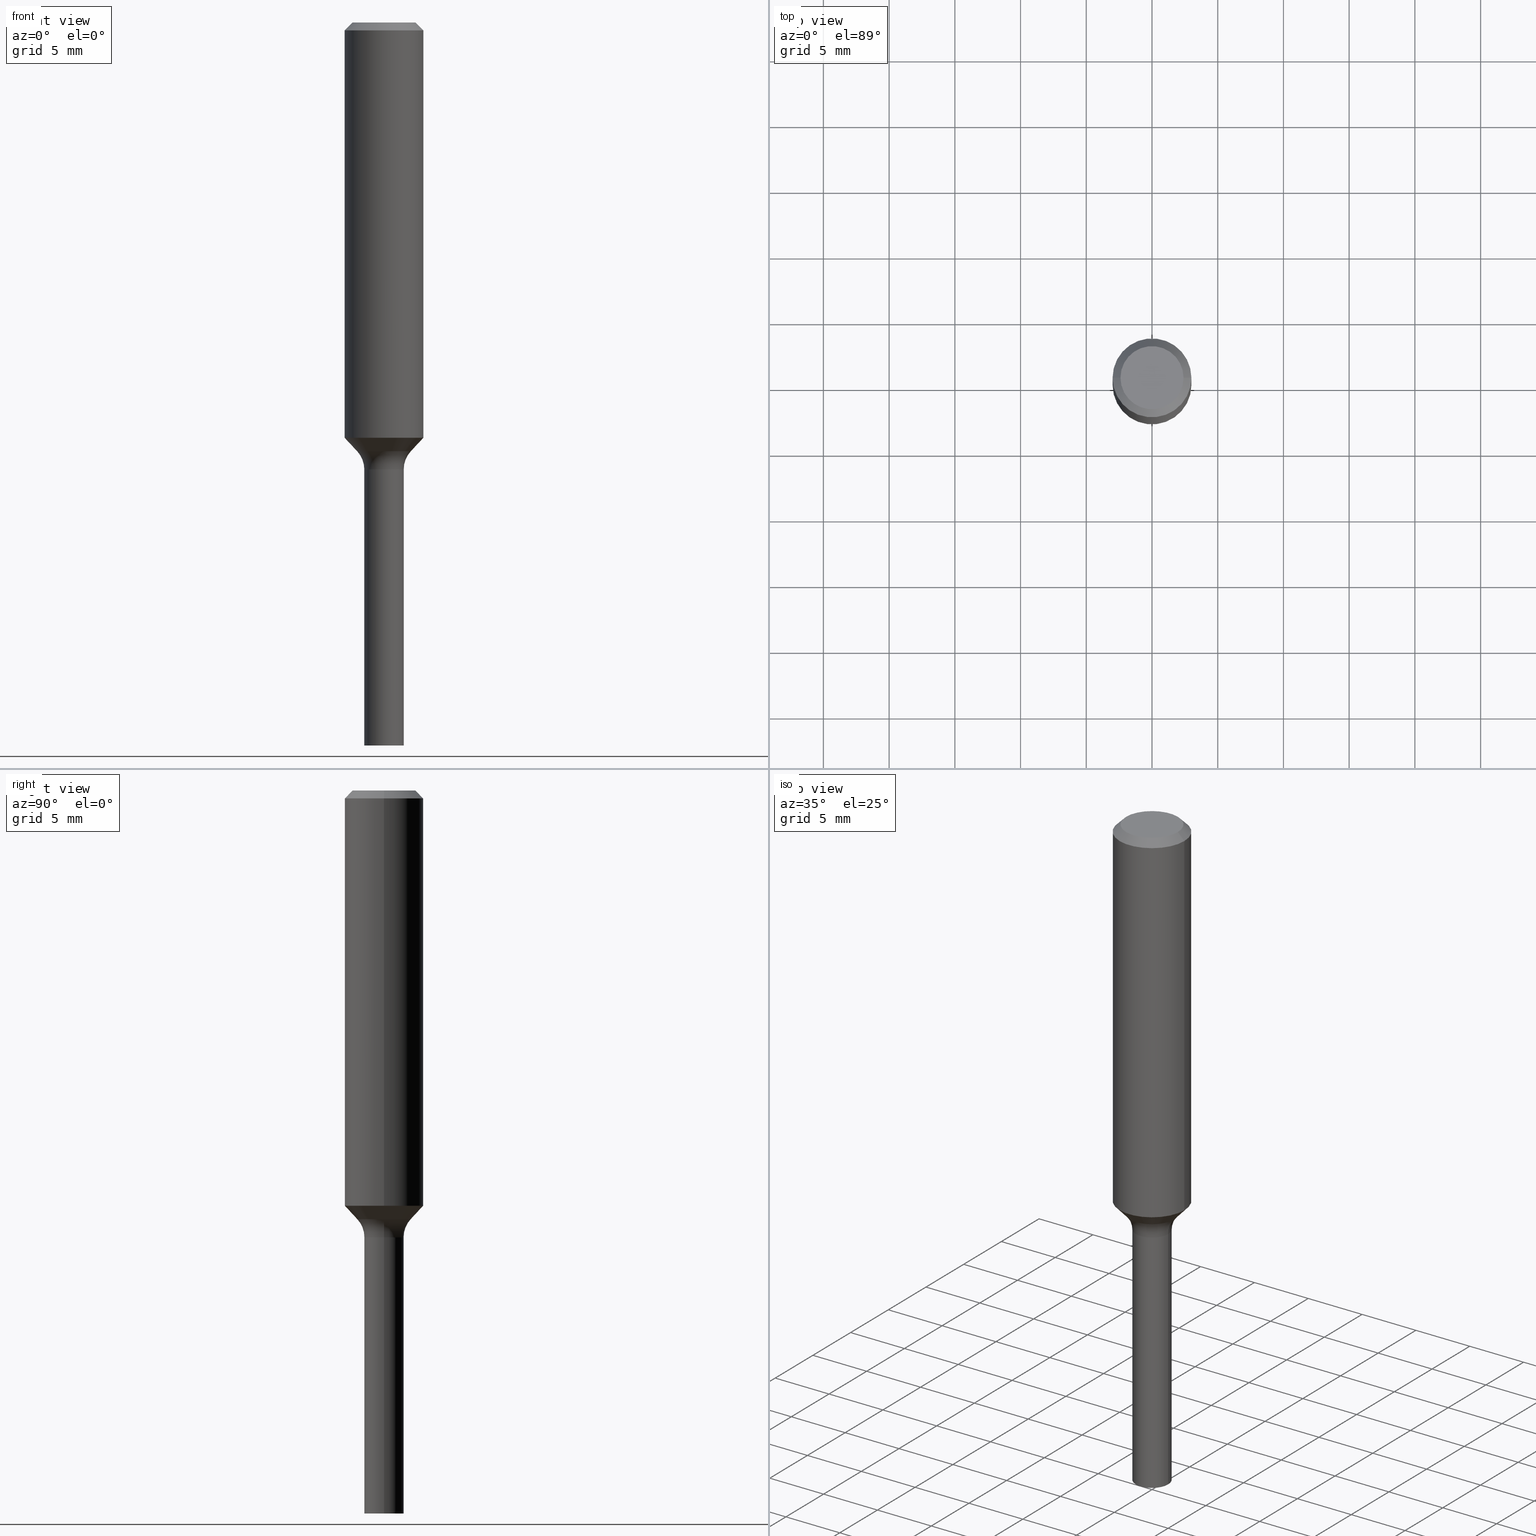
[diagram: canonical four-view strip — front | top / right | iso, engineering-drawing reading convention]
A machine part, canonical four-view strip (front | top / right | iso — engineering-drawing reading convention). The complete STEP part file that produces these views, byte-faithful:
ISO-10303-21;
HEADER;
FILE_DESCRIPTION (( 'STEP AP203' ),
    '1' );
FILE_NAME ('67705.STEP',
    '2025-04-01T15:29:20',
    ( '' ),
    ( '' ),
    'SwSTEP 2.0',
    'SolidWorks 2024',
    '' );
FILE_SCHEMA (( 'CONFIG_CONTROL_DESIGN' ));
ENDSEC;

DATA;
#1 = ADVANCED_FACE ( 'NONE', ( #243 ), #320, .F. ) ;
#2 = VERTEX_POINT ( 'NONE', #159 ) ;
#3 = DIRECTION ( 'NONE',  ( 1.000000000000000000, -6.982962677686266711E-15, 0.000000000000000000 ) ) ;
#4 = CONICAL_SURFACE ( 'NONE', #202, 0.08054170387046688528, 0.7504915783575698551 ) ;
#5 = EDGE_LOOP ( 'NONE', ( #175, #250, #88, #242 ) ) ;
#6 = DIRECTION ( 'NONE',  ( 2.445468806185136597E-29, -3.491481338843145583E-15, -1.000000000000000000 ) ) ;
#7 = APPROVAL_STATUS ( 'not_yet_approved' ) ;
#8 = ORIENTED_EDGE ( 'NONE', *, *, #327, .F. ) ;
#9 = DIRECTION ( 'NONE',  ( 1.000000000000000000, -6.982962677686268288E-15, 4.883557194083113462E-29 ) ) ;
#10 = EDGE_CURVE ( 'NONE', #276, #253, #12, .T. ) ;
#11 = ORIENTED_EDGE ( 'NONE', *, *, #10, .F. ) ;
#12 = CIRCLE ( 'NONE', #272, 0.05904999999999960975 ) ;
#13 = ORGANIZATION ( 'UNSPECIFIED', 'UNSPECIFIED', '' ) ;
#14 = PERSON_AND_ORGANIZATION ( #293, #13 ) ;
#15 = DIRECTION ( 'NONE',  ( 1.000000000000000000, -6.982962677686262766E-15, 0.000000000000000000 ) ) ;
#16 = APPLICATION_CONTEXT ( 'configuration controlled 3d designs of mechanical parts and assemblies' ) ;
#17 = CARTESIAN_POINT ( 'NONE',  ( -0.09447999999999998066, 7.009847083995354710E-16, -3.085620075132147757E-17 ) ) ;
#18 = CARTESIAN_POINT ( 'NONE',  ( -0.05904999999999963750, 4.195754854663365840E-16, -2.904631170795504376E-30 ) ) ;
#19 = DIRECTION ( 'NONE',  ( -2.445468806185136597E-29, 3.491481338843145583E-15, 1.000000000000000000 ) ) ;
#20 = DIRECTION ( 'NONE',  ( -2.445468806185136597E-29, 3.491481338843145583E-15, 1.000000000000000000 ) ) ;
#21 = CARTESIAN_POINT ( 'NONE',  ( 7.545787641473140628E-46, -1.077338491108201769E-31, -3.085620075131671975E-17 ) ) ;
#22 = CYLINDRICAL_SURFACE ( 'NONE', #82, 0.05905000000000001914 ) ;
#23 = CARTESIAN_POINT ( 'NONE',  ( 1.250612747483078623E-29, -1.785543556684384453E-15, -0.5113999999999998547 ) ) ;
#24 = ORIENTED_EDGE ( 'NONE', *, *, #475, .T. ) ;
#25 = CARTESIAN_POINT ( 'NONE',  ( 1.250612747483078623E-29, -1.785543556684384453E-15, -0.5113999999999998547 ) ) ;
#26 = ADVANCED_FACE ( 'NONE', ( #38 ), #317, .T. ) ;
#27 = EDGE_LOOP ( 'NONE', ( #168, #140 ) ) ;
#28 = CARTESIAN_POINT ( 'NONE',  ( -0.08054170387046684365, -3.910220634016262592E-15, -1.283840131194999401 ) ) ;
#29 = APPROVAL ( #7, 'UNSPECIFIED' ) ;
#30 = AXIS2_PLACEMENT_3D ( 'NONE', #382, #129, #424 ) ;
#31 = CIRCLE ( 'NONE', #470, 0.09447999999999998066 ) ;
#32 = ORIENTED_EDGE ( 'NONE', *, *, #136, .F. ) ;
#33 = DIRECTION ( 'NONE',  ( -2.445468806185136597E-29, 3.491481338843145583E-15, 1.000000000000000000 ) ) ;
#34 = AXIS2_PLACEMENT_3D ( 'NONE', #391, #394, #379 ) ;
#35 = CIRCLE ( 'NONE', #113, 0.08000000000000000167 ) ;
#36 = CARTESIAN_POINT ( 'NONE',  ( 1.249390013079987083E-29, -1.783797816014964133E-15, -0.5109000000000002428 ) ) ;
#37 = DIRECTION ( 'NONE',  ( -2.445468806185136597E-29, 3.491481338843145583E-15, 1.000000000000000000 ) ) ;
#38 = FACE_OUTER_BOUND ( 'NONE', #494, .T. ) ;
#39 = CARTESIAN_POINT ( 'NONE',  ( 0.09447999999999998066, -7.704367267948738690E-16, -3.085620075131172158E-17 ) ) ;
#40 = CARTESIAN_POINT ( 'NONE',  ( 1.250612747483078623E-29, -1.785543556684384453E-15, -0.5113999999999998547 ) ) ;
#41 = APPROVAL_DATE_TIME ( #206, #268 ) ;
#42 = EDGE_LOOP ( 'NONE', ( #464, #68, #153, #72 ) ) ;
#43 = PERSON_AND_ORGANIZATION ( #293, #13 ) ;
#44 = CARTESIAN_POINT ( 'NONE',  ( 3.273015450198186905E-29, -4.672998623907666135E-15, -1.338400000000000034 ) ) ;
#45 = EDGE_CURVE ( 'NONE', #409, #462, #35, .T. ) ;
#46 = UNCERTAINTY_MEASURE_WITH_UNIT (LENGTH_MEASURE( 1.000000000000000082E-05 ), #237, 'distance_accuracy_value', 'NONE');
#47 = ORIENTED_EDGE ( 'NONE', *, *, #331, .F. ) ;
#48 = PERSON_AND_ORGANIZATION_ROLE ( 'creator' ) ;
#49 = DIRECTION ( 'NONE',  ( -2.445468806185136597E-29, 3.491481338843145583E-15, 1.000000000000000000 ) ) ;
#50 = CIRCLE ( 'NONE', #270, 0.09447999999999998066 ) ;
#51 = VECTOR ( 'NONE', #352, 39.37007874015748143 ) ;
#52 = EDGE_LOOP ( 'NONE', ( #104, #361, #11, #387 ) ) ;
#53 = DATE_TIME_ROLE ( 'creation_date' ) ;
#54 = DIRECTION ( 'NONE',  ( -2.445468806185136597E-29, 3.491481338843145583E-15, 1.000000000000000000 ) ) ;
#55 = FACE_OUTER_BOUND ( 'NONE', #309, .T. ) ;
#56 = ORIENTED_EDGE ( 'NONE', *, *, #513, .F. ) ;
#57 = CYLINDRICAL_SURFACE ( 'NONE', #91, 0.05905000000000001914 ) ;
#58 = DIRECTION ( 'NONE',  ( 0.6819983600625044717, -2.208861293262536151E-15, 0.7313537016191649087 ) ) ;
#59 = CARTESIAN_POINT ( 'NONE',  ( 0.05904999999999963750, -4.123439461173715675E-16, 2.879382386107482354E-30 ) ) ;
#60 = DIRECTION ( 'NONE',  ( -0.7071067811864992780, 7.493145998870180611E-15, 0.7071067811865957564 ) ) ;
#61 = CARTESIAN_POINT ( 'NONE',  ( 1.250612747483078623E-29, -1.785543556684384453E-15, -0.5113999999999998547 ) ) ;
#62 = DIRECTION ( 'NONE',  ( -2.445468806185136597E-29, 3.491481338843145583E-15, 1.000000000000000000 ) ) ;
#63 = AXIS2_PLACEMENT_3D ( 'NONE', #240, #478, #192 ) ;
#64 = CARTESIAN_POINT ( 'NONE',  ( 1.250612747483078623E-29, -1.785543556684384453E-15, -0.5113999999999998547 ) ) ;
#65 = ORIENTED_EDGE ( 'NONE', *, *, #374, .T. ) ;
#66 = CARTESIAN_POINT ( 'NONE',  ( 0.1390499999999997016, -5.643979584239939552E-15, -1.338400000000000034 ) ) ;
#67 = ORIENTED_EDGE ( 'NONE', *, *, #205, .T. ) ;
#68 = ORIENTED_EDGE ( 'NONE', *, *, #495, .T. ) ;
#69 = AXIS2_PLACEMENT_3D ( 'NONE', #61, #103, #307 ) ;
#70 = LENGTH_MEASURE_WITH_UNIT ( LENGTH_MEASURE( 0.02539999999999999897 ), #281 );
#71 = CARTESIAN_POINT ( 'NONE',  ( -0.05905000000000001914, -4.253423138441326642E-15, -2.165399999999999991 ) ) ;
#72 = ORIENTED_EDGE ( 'NONE', *, *, #205, .F. ) ;
#73 = PERSON_AND_ORGANIZATION_ROLE ( 'design_owner' ) ;
#74 = CIRCLE ( 'NONE', #372, 0.08000000000000000167 ) ;
#75 = EDGE_CURVE ( 'NONE', #488, #353, #469, .T. ) ;
#76 = CARTESIAN_POINT ( 'NONE',  ( -0.1180999999999999966, -1.373023306245422013E-15, -0.02362000000000014088 ) ) ;
#77 = ORIENTED_EDGE ( 'NONE', *, *, #474, .T. ) ;
#78 = DIRECTION ( 'NONE',  ( 1.000000000000000000, -6.982962677686270655E-15, 0.000000000000000000 ) ) ;
#79 = CARTESIAN_POINT ( 'NONE',  ( 1.250612747483078623E-29, -1.785543556684384453E-15, -0.5113999999999998547 ) ) ;
#80 = ORIENTED_EDGE ( 'NONE', *, *, #10, .T. ) ;
#81 = PERSON_AND_ORGANIZATION ( #293, #13 ) ;
#82 = AXIS2_PLACEMENT_3D ( 'NONE', #274, #174, #432 ) ;
#83 = CIRCLE ( 'NONE', #386, 0.05905000000000001914 ) ;
#84 = EDGE_LOOP ( 'NONE', ( #47, #511, #468, #416 ) ) ;
#85 = CC_DESIGN_PERSON_AND_ORGANIZATION_ASSIGNMENT ( #14, #289, ( #472 ) ) ;
#86 = ORIENTED_EDGE ( 'NONE', *, *, #45, .T. ) ;
#87 = DIRECTION ( 'NONE',  ( 2.438088387897960049E-29, -3.491481338843145188E-15, -1.000000000000000000 ) ) ;
#88 = ORIENTED_EDGE ( 'NONE', *, *, #146, .T. ) ;
#89 = CYLINDRICAL_SURFACE ( 'NONE', #350, 0.05904999999999963750 ) ;
#90 = CARTESIAN_POINT ( 'NONE',  ( 0.1180999999999999966, -8.926936027602933910E-16, -0.02362000000000014088 ) ) ;
#91 = AXIS2_PLACEMENT_3D ( 'NONE', #221, #20, #466 ) ;
#92 = VERTEX_POINT ( 'NONE', #76 ) ;
#93 = LOCAL_TIME ( 11, 29, 20.00000000000000000, #95 ) ;
#94 = ORIENTED_EDGE ( 'NONE', *, *, #475, .F. ) ;
#95 = COORDINATED_UNIVERSAL_TIME_OFFSET ( 5, 0, .BEHIND. ) ;
#96 = DIRECTION ( 'NONE',  ( -2.445468806185136597E-29, 3.491481338843145583E-15, 1.000000000000000000 ) ) ;
#97 = CARTESIAN_POINT ( 'NONE',  ( 3.273015450198186344E-29, -4.672998623907665346E-15, -1.338399999999999812 ) ) ;
#98 = FACE_OUTER_BOUND ( 'NONE', #473, .T. ) ;
#99 = CARTESIAN_POINT ( 'NONE',  ( 0.000000000000000000, 0.000000000000000000, 0.000000000000000000 ) ) ;
#100 = AXIS2_PLACEMENT_3D ( 'NONE', #117, #6, #492 ) ;
#101 = VERTEX_POINT ( 'NONE', #201 ) ;
#102 = ADVANCED_FACE ( 'NONE', ( #489 ), #505, .T. ) ;
#103 = DIRECTION ( 'NONE',  ( -2.438088387897960049E-29, 3.491481338843145188E-15, 1.000000000000000000 ) ) ;
#104 = ORIENTED_EDGE ( 'NONE', *, *, #230, .T. ) ;
#105 = LINE ( 'NONE', #260, #194 ) ;
#106 = VECTOR ( 'NONE', #336, 39.37007874015748143 ) ;
#107 = DIRECTION ( 'NONE',  ( 1.000000000000000000, -6.982962677686266711E-15, 0.000000000000000000 ) ) ;
#108 = APPLICATION_PROTOCOL_DEFINITION ( 'international standard', 'config_control_design', 1994, #16 ) ;
#109 = LINE ( 'NONE', #212, #512 ) ;
#110 = AXIS2_PLACEMENT_3D ( 'NONE', #138, #62, #301 ) ;
#111 = CARTESIAN_POINT ( 'NONE',  ( -0.1390499999999997016, -3.684988949833249144E-15, -1.338400000000000034 ) ) ;
#112 = CARTESIAN_POINT ( 'NONE',  ( 5.776197320209327532E-31, -8.246878922347559293E-17, -0.02362000000000014088 ) ) ;
#113 = AXIS2_PLACEMENT_3D ( 'NONE', #111, #442, #480 ) ;
#114 = CC_DESIGN_APPROVAL ( #268, ( #152 ) ) ;
#115 = DIRECTION ( 'NONE',  ( 1.000000000000000000, -6.982962677686268288E-15, 4.883557194083113462E-29 ) ) ;
#116 = CARTESIAN_POINT ( 'NONE',  ( -0.05904999999999968607, -2.808822734494976824E-15, -1.338399999999999812 ) ) ;
#117 = CARTESIAN_POINT ( 'NONE',  ( 5.776197320209327532E-31, -8.246878922347559293E-17, -0.02362000000000014088 ) ) ;
#118 = SECURITY_CLASSIFICATION_LEVEL ( 'unclassified' ) ;
#119 = AXIS2_PLACEMENT_3D ( 'NONE', #415, #262, #257 ) ;
#120 = ORIENTED_EDGE ( 'NONE', *, *, #396, .F. ) ;
#121 = VECTOR ( 'NONE', #200, 39.37007874015748143 ) ;
#122 = CARTESIAN_POINT ( 'NONE',  ( 3.772893820736570314E-46, -5.386692455541008845E-32, -1.542810037565835988E-17 ) ) ;
#123 = CLOSED_SHELL ( 'NONE', ( #189, #465, #223, #130, #1, #150, #246, #125, #343, #433, #102, #367, #210, #196 ) ) ;
#124 = DATE_AND_TIME ( #446, #145 ) ;
#125 = ADVANCED_FACE ( 'NONE', ( #450 ), #398, .F. ) ;
#126 = PLANE ( 'NONE',  #256 ) ;
#127 = DIRECTION ( 'NONE',  ( -6.982962677686266711E-15, -1.000000000000000000, 3.491481338843145583E-15 ) ) ;
#128 = ORIENTED_EDGE ( 'NONE', *, *, #427, .F. ) ;
#129 = DIRECTION ( 'NONE',  ( -2.445468806185136597E-29, 3.491481338843145583E-15, 1.000000000000000000 ) ) ;
#130 = ADVANCED_FACE ( 'NONE', ( #252 ), #4, .T. ) ;
#131 = DIRECTION ( 'NONE',  ( 1.000000000000000000, -6.982962677686262766E-15, 0.000000000000000000 ) ) ;
#132 = AXIS2_PLACEMENT_3D ( 'NONE', #44, #369, #9 ) ;
#133 = LINE ( 'NONE', #299, #390 ) ;
#134 = DIRECTION ( 'NONE',  ( -2.445468806185136597E-29, 3.491481338843145583E-15, 1.000000000000000000 ) ) ;
#135 = LINE ( 'NONE', #183, #106 ) ;
#136 = EDGE_CURVE ( 'NONE', #413, #402, #308, .T. ) ;
#137 = EDGE_LOOP ( 'NONE', ( #381, #259, #264, #226 ) ) ;
#138 = CARTESIAN_POINT ( 'NONE',  ( 3.273015450198186344E-29, -4.672998623907665346E-15, -1.338399999999999812 ) ) ;
#139 = DIRECTION ( 'NONE',  ( -2.445468806185136597E-29, 3.491481338843145583E-15, 1.000000000000000000 ) ) ;
#140 = ORIENTED_EDGE ( 'NONE', *, *, #136, .T. ) ;
#141 = EDGE_CURVE ( 'NONE', #485, #92, #135, .T. ) ;
#142 = DIRECTION ( 'NONE',  ( 1.000000000000000000, -6.982962677686262766E-15, 0.000000000000000000 ) ) ;
#143 = CIRCLE ( 'NONE', #458, 0.05905000000000001914 ) ;
#144 = DIRECTION ( 'NONE',  ( -2.445468806185136597E-29, 3.491481338843145583E-15, 1.000000000000000000 ) ) ;
#145 = LOCAL_TIME ( 11, 29, 20.00000000000000000, #169 ) ;
#146 = EDGE_CURVE ( 'NONE', #163, #101, #74, .T. ) ;
#147 = CONICAL_SURFACE ( 'NONE', #447, 0.08054170387046688528, 0.7504915783575698551 ) ;
#148 = LINE ( 'NONE', #349, #285 ) ;
#149 = CARTESIAN_POINT ( 'NONE',  ( 0.05855000000000004645, -2.194396021462915183E-15, -0.5113999999999998547 ) ) ;
#150 = ADVANCED_FACE ( 'NONE', ( #337 ), #421, .F. ) ;
#151 = DIRECTION ( 'NONE',  ( 1.000000000000000000, -6.982962677686266711E-15, 0.000000000000000000 ) ) ;
#152 = PRODUCT_DEFINITION ( 'UNKNOWN', '', #472, #370 ) ;
#153 = ORIENTED_EDGE ( 'NONE', *, *, #315, .F. ) ;
#154 = DIRECTION ( 'NONE',  ( -2.445468806185136597E-29, 3.491481338843145583E-15, 1.000000000000000000 ) ) ;
#155 = AXIS2_PLACEMENT_3D ( 'NONE', #64, #385, #131 ) ;
#156 = VECTOR ( 'NONE', #185, 39.37007874015748143 ) ;
#157 = CYLINDRICAL_SURFACE ( 'NONE', #34, 0.1181000000000000660 ) ;
#158 = CIRCLE ( 'NONE', #110, 0.05904999999999967220 ) ;
#159 = CARTESIAN_POINT ( 'NONE',  ( 0.1180999999999999966, -9.071566814582237199E-16, -0.02362000000000014088 ) ) ;
#160 = DIRECTION ( 'NONE',  ( -2.445468806185136597E-29, 3.491481338843145583E-15, 1.000000000000000000 ) ) ;
#161 = CC_DESIGN_APPROVAL ( #479, ( #484 ) ) ;
#162 = AXIS2_PLACEMENT_3D ( 'NONE', #244, #322, #241 ) ;
#163 = VERTEX_POINT ( 'NONE', #225 ) ;
#164 = CALENDAR_DATE ( 2025, 1, 4 ) ;
#165 = DIRECTION ( 'NONE',  ( 1.000000000000000000, -6.982962677686269866E-15, 0.000000000000000000 ) ) ;
#166 = APPROVAL_STATUS ( 'not_yet_approved' ) ;
#167 = EDGE_CURVE ( 'NONE', #101, #462, #407, .T. ) ;
#168 = ORIENTED_EDGE ( 'NONE', *, *, #280, .T. ) ;
#169 = COORDINATED_UNIVERSAL_TIME_OFFSET ( 5, 0, .BEHIND. ) ;
#170 = DATE_AND_TIME ( #164, #93 ) ;
#171 = ORIENTED_EDGE ( 'NONE', *, *, #75, .F. ) ;
#172 = ORIENTED_EDGE ( 'NONE', *, *, #396, .T. ) ;
#173 = DIRECTION ( 'NONE',  ( -2.445468806185136877E-29, 3.491481338843145188E-15, 1.000000000000000000 ) ) ;
#174 = DIRECTION ( 'NONE',  ( -2.445468806185136597E-29, 3.491481338843145583E-15, 1.000000000000000000 ) ) ;
#175 = ORIENTED_EDGE ( 'NONE', *, *, #45, .F. ) ;
#176 = FACE_OUTER_BOUND ( 'NONE', #346, .T. ) ;
#177 = DIRECTION ( 'NONE',  ( 1.000000000000000000, -6.982962677686267499E-15, 4.875432709231658792E-29 ) ) ;
#178 = AXIS2_PLACEMENT_3D ( 'NONE', #207, #303, #265 ) ;
#179 = LINE ( 'NONE', #378, #211 ) ;
#180 = AXIS2_PLACEMENT_3D ( 'NONE', #463, #503, #220 ) ;
#181 = DIRECTION ( 'NONE',  ( 0.7071067811864992780, -2.468850131081751401E-15, 0.7071067811865957564 ) ) ;
#182 = CC_DESIGN_PERSON_AND_ORGANIZATION_ASSIGNMENT ( #318, #73, ( #487 ) ) ;
#183 = CARTESIAN_POINT ( 'NONE',  ( -0.1181000000000000660, 8.391509709326787887E-16, -5.809262341591047287E-30 ) ) ;
#184 = ORIENTED_EDGE ( 'NONE', *, *, #514, .F. ) ;
#185 = DIRECTION ( 'NONE',  ( -2.445468806185136877E-29, 3.491481338843145188E-15, 1.000000000000000000 ) ) ;
#186 = ADVANCED_BREP_SHAPE_REPRESENTATION ( '67705', ( #366, #358, #63 ), #323 ) ;
#187 = VECTOR ( 'NONE', #181, 39.37007874015748143 ) ;
#188 = CC_DESIGN_APPROVAL ( #29, ( #472 ) ) ;
#189 = ADVANCED_FACE ( 'NONE', ( #501 ), #215, .T. ) ;
#190 = CARTESIAN_POINT ( 'NONE',  ( -0.1181000000000001493, -3.502728794200047555E-15, -1.243563789623847393 ) ) ;
#191 = PRODUCT_DEFINITION_SHAPE ( 'NONE', 'NONE',  #152 ) ;
#192 = DIRECTION ( 'NONE',  ( 1.000000000000000000, 0.000000000000000000, 0.000000000000000000 ) ) ;
#193 = DIRECTION ( 'NONE',  ( 1.000000000000000000, -6.982962677686270655E-15, 0.000000000000000000 ) ) ;
#194 = VECTOR ( 'NONE', #249, 39.37007874015748143 ) ;
#195 = PERSON_AND_ORGANIZATION ( #293, #13 ) ;
#196 = ADVANCED_FACE ( 'NONE', ( #263 ), #493, .T. ) ;
#197 = DIRECTION ( 'NONE',  ( 2.438088387897960049E-29, -3.491481338843145188E-15, -1.000000000000000000 ) ) ;
#198 = CARTESIAN_POINT ( 'NONE',  ( -0.05855000000000004645, -1.366871557722736433E-15, -0.5113999999999998547 ) ) ;
#199 = ORIENTED_EDGE ( 'NONE', *, *, #435, .F. ) ;
#200 = DIRECTION ( 'NONE',  ( -0.7071067811865461294, 2.468850131082242072E-15, -0.7071067811865489050 ) ) ;
#201 = CARTESIAN_POINT ( 'NONE',  ( 0.05904999999999967220, -5.085342570025036322E-15, -1.338399999999999812 ) ) ;
#202 = AXIS2_PLACEMENT_3D ( 'NONE', #342, #139, #461 ) ;
#203 = CALENDAR_DATE ( 2025, 1, 4 ) ;
#204 = AXIS2_PLACEMENT_3D ( 'NONE', #434, #160, #78 ) ;
#205 = EDGE_CURVE ( 'NONE', #163, #213, #179, .T. ) ;
#206 = DATE_AND_TIME ( #330, #439 ) ;
#207 = CARTESIAN_POINT ( 'NONE',  ( 1.250612747483078623E-29, -1.785543556684384453E-15, -0.5113999999999998547 ) ) ;
#208 = ORIENTED_EDGE ( 'NONE', *, *, #315, .T. ) ;
#209 = CARTESIAN_POINT ( 'NONE',  ( 3.273015450198186905E-29, -4.672998623907666135E-15, -1.338400000000000034 ) ) ;
#210 = ADVANCED_FACE ( 'NONE', ( #302 ), #388, .F. ) ;
#211 = VECTOR ( 'NONE', #58, 39.37007874015748143 ) ;
#212 = CARTESIAN_POINT ( 'NONE',  ( 0.05905000000000001914, -2.197887502801758584E-15, -0.5113999999999998547 ) ) ;
#213 = VERTEX_POINT ( 'NONE', #455 ) ;
#214 = APPROVAL_DATE_TIME ( #297, #479 ) ;
#215 = CONICAL_SURFACE ( 'NONE', #155, 0.05855000000000004645, 0.7853981633973801113 ) ;
#216 = EDGE_CURVE ( 'NONE', #438, #2, #467, .T. ) ;
#217 = EDGE_LOOP ( 'NONE', ( #239, #171 ) ) ;
#218 = APPROVAL_DATE_TIME ( #124, #29 ) ;
#219 = CARTESIAN_POINT ( 'NONE',  ( -0.05904999999999960975, -2.808822734494978008E-15, -0.5109000000000002428 ) ) ;
#220 = DIRECTION ( 'NONE',  ( 1.000000000000000000, -6.982962677686267499E-15, 4.876176775795935793E-29 ) ) ;
#221 = CARTESIAN_POINT ( 'NONE',  ( 1.250612747483078623E-29, -1.785543556684384453E-15, -0.5113999999999998547 ) ) ;
#222 = DIRECTION ( 'NONE',  ( -2.445468806185136597E-29, 3.491481338843145583E-15, 1.000000000000000000 ) ) ;
#223 = ADVANCED_FACE ( 'NONE', ( #471 ), #266, .T. ) ;
#224 = CIRCLE ( 'NONE', #515, 0.1180999999999999966 ) ;
#225 = CARTESIAN_POINT ( 'NONE',  ( 0.08054170387046684365, -5.044923572250005729E-15, -1.283840131194999401 ) ) ;
#226 = ORIENTED_EDGE ( 'NONE', *, *, #474, .F. ) ;
#227 = DIRECTION ( 'NONE',  ( 1.000000000000000000, -6.982962677686271444E-15, 0.000000000000000000 ) ) ;
#228 = CARTESIAN_POINT ( 'NONE',  ( 0.05905000000000001914, -2.197887502801758584E-15, -0.5113999999999998547 ) ) ;
#229 = DIRECTION ( 'NONE',  ( 1.000000000000000000, -6.982962677686266711E-15, 0.000000000000000000 ) ) ;
#230 = EDGE_CURVE ( 'NONE', #353, #488, #504, .T. ) ;
#231 = ORIENTED_EDGE ( 'NONE', *, *, #412, .T. ) ;
#232 = CARTESIAN_POINT ( 'NONE',  ( 3.139590992966004892E-29, -4.482503860125276497E-15, -1.283840131194999401 ) ) ;
#233 = PRODUCT_RELATED_PRODUCT_CATEGORY ( 'detail', '', ( #487 ) ) ;
#234 = EDGE_CURVE ( 'NONE', #163, #409, #248, .T. ) ;
#235 =( NAMED_UNIT ( * ) PLANE_ANGLE_UNIT ( ) SI_UNIT ( $, .RADIAN. ) );
#236 = ADVANCED_FACE ( 'NONE', ( #55 ), #22, .T. ) ;
#237 =( CONVERSION_BASED_UNIT ( 'INCH', #70 ) LENGTH_UNIT ( ) NAMED_UNIT ( #502 ) );
#238 = VECTOR ( 'NONE', #383, 39.37007874015748143 ) ;
#239 = ORIENTED_EDGE ( 'NONE', *, *, #230, .F. ) ;
#240 = CARTESIAN_POINT ( 'NONE',  ( 0.000000000000000000, 0.000000000000000000, 0.000000000000000000 ) ) ;
#241 = DIRECTION ( 'NONE',  ( 1.000000000000000000, -6.982962677686269866E-15, 0.000000000000000000 ) ) ;
#242 = ORIENTED_EDGE ( 'NONE', *, *, #167, .T. ) ;
#243 = FACE_OUTER_BOUND ( 'NONE', #499, .T. ) ;
#244 = CARTESIAN_POINT ( 'NONE',  ( 1.249390013079987083E-29, -1.783797816014964133E-15, -0.5109000000000002428 ) ) ;
#245 = DIRECTION ( 'NONE',  ( -2.445468806185136597E-29, 3.491481338843145583E-15, 1.000000000000000000 ) ) ;
#246 = ADVANCED_FACE ( 'NONE', ( #339 ), #89, .F. ) ;
#247 = ORIENTED_EDGE ( 'NONE', *, *, #495, .F. ) ;
#248 = CIRCLE ( 'NONE', #397, 0.08054170387046688528 ) ;
#249 = DIRECTION ( 'NONE',  ( -2.445468806185136877E-29, 3.491481338843145188E-15, 1.000000000000000000 ) ) ;
#250 = ORIENTED_EDGE ( 'NONE', *, *, #234, .F. ) ;
#251 = SHAPE_DEFINITION_REPRESENTATION ( #191, #186 ) ;
#252 = FACE_OUTER_BOUND ( 'NONE', #42, .T. ) ;
#253 = VERTEX_POINT ( 'NONE', #219 ) ;
#254 = COORDINATED_UNIVERSAL_TIME_OFFSET ( 5, 0, .BEHIND. ) ;
#255 = DATE_TIME_ROLE ( 'classification_date' ) ;
#256 = AXIS2_PLACEMENT_3D ( 'NONE', #122, #87, #452 ) ;
#257 = DIRECTION ( 'NONE',  ( 1.000000000000000000, -6.982962677686270655E-15, 0.000000000000000000 ) ) ;
#258 = DIRECTION ( 'NONE',  ( -2.445468806185136597E-29, 3.491481338843145583E-15, 1.000000000000000000 ) ) ;
#259 = ORIENTED_EDGE ( 'NONE', *, *, #389, .T. ) ;
#260 = CARTESIAN_POINT ( 'NONE',  ( 0.1181000000000000660, -8.246878922347485584E-16, 5.758764772215003944E-30 ) ) ;
#261 = ORIENTED_EDGE ( 'NONE', *, *, #513, .T. ) ;
#262 = DIRECTION ( 'NONE',  ( -2.445468806185136597E-29, 3.491481338843145583E-15, 1.000000000000000000 ) ) ;
#263 = FACE_OUTER_BOUND ( 'NONE', #509, .T. ) ;
#264 = ORIENTED_EDGE ( 'NONE', *, *, #427, .T. ) ;
#265 = DIRECTION ( 'NONE',  ( -1.000000000000000000, 6.982962677686265922E-15, -4.876176775795935793E-29 ) ) ;
#266 = CYLINDRICAL_SURFACE ( 'NONE', #482, 0.1181000000000000660 ) ;
#267 = ORIENTED_EDGE ( 'NONE', *, *, #304, .T. ) ;
#268 = APPROVAL ( #518, 'UNSPECIFIED' ) ;
#269 = VECTOR ( 'NONE', #173, 39.37007874015748143 ) ;
#270 = AXIS2_PLACEMENT_3D ( 'NONE', #335, #49, #373 ) ;
#271 = DIRECTION ( 'NONE',  ( -2.445468806185136597E-29, 3.491481338843145583E-15, 1.000000000000000000 ) ) ;
#272 = AXIS2_PLACEMENT_3D ( 'NONE', #36, #405, #165 ) ;
#273 = ORIENTED_EDGE ( 'NONE', *, *, #280, .F. ) ;
#274 = CARTESIAN_POINT ( 'NONE',  ( 1.250612747483078623E-29, -1.785543556684384453E-15, -0.5113999999999998547 ) ) ;
#275 = APPLICATION_CONTEXT ( 'configuration controlled 3d designs of mechanical parts and assemblies' ) ;
#276 = VERTEX_POINT ( 'NONE', #326 ) ;
#277 = EDGE_CURVE ( 'NONE', #462, #253, #377, .T. ) ;
#278 = AXIS2_PLACEMENT_3D ( 'NONE', #425, #258, #229 ) ;
#279 =( NAMED_UNIT ( * ) SI_UNIT ( $, .STERADIAN. ) SOLID_ANGLE_UNIT ( ) );
#280 = EDGE_CURVE ( 'NONE', #402, #413, #143, .T. ) ;
#281 =( LENGTH_UNIT ( ) NAMED_UNIT ( * ) SI_UNIT ( $, .METRE. ) );
#282 = CIRCLE ( 'NONE', #483, 0.1181000000000001493 ) ;
#283 = CARTESIAN_POINT ( 'NONE',  ( 5.295418152913294345E-29, -7.560453691130947423E-15, -2.165399999999999991 ) ) ;
#284 = DIRECTION ( 'NONE',  ( -0.6819983600625044717, 7.399397606724310242E-15, 0.7313537016191649087 ) ) ;
#285 = VECTOR ( 'NONE', #284, 39.37007874015748143 ) ;
#286 = DIRECTION ( 'NONE',  ( -1.000000000000000000, 6.982962677686265922E-15, -4.876176775795935793E-29 ) ) ;
#287 = ORIENTED_EDGE ( 'NONE', *, *, #291, .F. ) ;
#288 = AXIS2_PLACEMENT_3D ( 'NONE', #283, #197, #286 ) ;
#289 = PERSON_AND_ORGANIZATION_ROLE ( 'design_supplier' ) ;
#290 = CARTESIAN_POINT ( 'NONE',  ( 5.776197320209327532E-31, -8.246878922347559293E-17, -0.02362000000000014088 ) ) ;
#291 = EDGE_CURVE ( 'NONE', #356, #402, #109, .T. ) ;
#292 = CARTESIAN_POINT ( 'NONE',  ( 0.05905000000000001914, -7.972797637248321554E-15, -2.165399999999999991 ) ) ;
#293 = PERSON ( 'UNSPECIFIED', 'UNSPECIFIED', 'UNSPECIFIED', ('UNSPECIFIED'), ('UNSPECIFIED'), ('UNSPECIFIED') ) ;
#294 = ORIENTED_EDGE ( 'NONE', *, *, #448, .F. ) ;
#295 = DIRECTION ( 'NONE',  ( -2.445468806185136597E-29, 3.491481338843145583E-15, 1.000000000000000000 ) ) ;
#296 = DIRECTION ( 'NONE',  ( -2.445468806185136877E-29, 3.491481338843145188E-15, 1.000000000000000000 ) ) ;
#297 = DATE_AND_TIME ( #490, #392 ) ;
#298 = DIRECTION ( 'NONE',  ( 1.000000000000000000, -6.982962677686270655E-15, 0.000000000000000000 ) ) ;
#299 = CARTESIAN_POINT ( 'NONE',  ( -0.05855000000000004645, -1.369520784896845267E-15, -0.5113999999999998547 ) ) ;
#300 = EDGE_LOOP ( 'NONE', ( #371, #120, #453, #77 ) ) ;
#301 = DIRECTION ( 'NONE',  ( 1.000000000000000000, -6.982962677686262766E-15, 0.000000000000000000 ) ) ;
#302 = FACE_OUTER_BOUND ( 'NONE', #217, .T. ) ;
#303 = DIRECTION ( 'NONE',  ( 2.438088387897960049E-29, -3.491481338843145188E-15, -1.000000000000000000 ) ) ;
#304 = EDGE_CURVE ( 'NONE', #353, #276, #418, .T. ) ;
#305 = AXIS2_PLACEMENT_3D ( 'NONE', #23, #222, #142 ) ;
#306 = CONICAL_SURFACE ( 'NONE', #319, 0.1180999999999999966, 0.7853981633974463916 ) ;
#307 = DIRECTION ( 'NONE',  ( 1.000000000000000000, -6.982962677686265922E-15, 4.876176775795935793E-29 ) ) ;
#308 = CIRCLE ( 'NONE', #278, 0.05905000000000001914 ) ;
#309 = EDGE_LOOP ( 'NONE', ( #404, #261, #273, #287 ) ) ;
#310 = CARTESIAN_POINT ( 'NONE',  ( -0.05905000000000001914, -4.253423138441326642E-15, -0.5113999999999998547 ) ) ;
#311 = APPROVAL_PERSON_ORGANIZATION ( #365, #29, #410 ) ;
#312 = CC_DESIGN_DATE_AND_TIME_ASSIGNMENT ( #417, #53, ( #152 ) ) ;
#313 = CARTESIAN_POINT ( 'NONE',  ( -0.05905000000000001914, -1.365968071218044960E-15, -0.5113999999999998547 ) ) ;
#314 = DIRECTION ( 'NONE',  ( 1.000000000000000000, -6.982962677686270655E-15, 0.000000000000000000 ) ) ;
#315 = EDGE_CURVE ( 'NONE', #213, #485, #282, .T. ) ;
#316 = LINE ( 'NONE', #436, #121 ) ;
#317 = PLANE ( 'NONE',  #288 ) ;
#318 = PERSON_AND_ORGANIZATION ( #293, #13 ) ;
#319 = AXIS2_PLACEMENT_3D ( 'NONE', #400, #357, #517 ) ;
#320 = TOROIDAL_SURFACE ( 'NONE', #516, 0.1390499999999997016, 0.08000000000000000167 ) ;
#321 = ADVANCED_FACE ( 'NONE', ( #176 ), #57, .T. ) ;
#322 = DIRECTION ( 'NONE',  ( -2.445468806185136597E-29, 3.491481338843145583E-15, 1.000000000000000000 ) ) ;
#323 =( GEOMETRIC_REPRESENTATION_CONTEXT ( 3 ) GLOBAL_UNCERTAINTY_ASSIGNED_CONTEXT ( ( #46 ) ) GLOBAL_UNIT_ASSIGNED_CONTEXT ( ( #237, #235, #279 ) ) REPRESENTATION_CONTEXT ( 'NONE', 'WORKASPACE' ) );
#324 = EDGE_LOOP ( 'NONE', ( #208, #344, #199, #128 ) ) ;
#325 = APPROVAL_ROLE ( '' ) ;
#326 = CARTESIAN_POINT ( 'NONE',  ( 0.05904999999999960975, -2.196141762132335503E-15, -0.5109000000000002428 ) ) ;
#327 = EDGE_CURVE ( 'NONE', #488, #253, #133, .T. ) ;
#328 = ORIENTED_EDGE ( 'NONE', *, *, #331, .T. ) ;
#329 = DIRECTION ( 'NONE',  ( -2.445468806185136597E-29, 3.491481338843145583E-15, 1.000000000000000000 ) ) ;
#330 = CALENDAR_DATE ( 2025, 1, 4 ) ;
#331 = EDGE_CURVE ( 'NONE', #462, #101, #158, .T. ) ;
#332 = AXIS2_PLACEMENT_3D ( 'NONE', #112, #154, #107 ) ;
#333 = ORIENTED_EDGE ( 'NONE', *, *, #389, .F. ) ;
#334 = COORDINATED_UNIVERSAL_TIME_OFFSET ( 5, 0, .BEHIND. ) ;
#335 = CARTESIAN_POINT ( 'NONE',  ( 7.545787641473140628E-46, -1.077338491108201769E-31, -3.085620075131671975E-17 ) ) ;
#336 = DIRECTION ( 'NONE',  ( -2.445468806185136877E-29, 3.491481338843145188E-15, 1.000000000000000000 ) ) ;
#337 = FACE_OUTER_BOUND ( 'NONE', #84, .T. ) ;
#338 = ORIENTED_EDGE ( 'NONE', *, *, #75, .T. ) ;
#339 = FACE_OUTER_BOUND ( 'NONE', #429, .T. ) ;
#340 = ORIENTED_EDGE ( 'NONE', *, *, #277, .F. ) ;
#341 = DIRECTION ( 'NONE',  ( 1.000000000000000000, -6.982962677686264344E-15, 0.000000000000000000 ) ) ;
#342 = CARTESIAN_POINT ( 'NONE',  ( 3.139590992966004892E-29, -4.482503860125276497E-15, -1.283840131194999401 ) ) ;
#343 = ADVANCED_FACE ( 'NONE', ( #98 ), #147, .T. ) ;
#344 = ORIENTED_EDGE ( 'NONE', *, *, #141, .T. ) ;
#345 = DIRECTION ( 'NONE',  ( 1.000000000000000000, -6.982962677686262766E-15, 0.000000000000000000 ) ) ;
#346 = EDGE_LOOP ( 'NONE', ( #56, #24, #445, #32 ) ) ;
#347 = CC_DESIGN_PERSON_AND_ORGANIZATION_ASSIGNMENT ( #500, #362, ( #484 ) ) ;
#348 = CARTESIAN_POINT ( 'NONE',  ( 3.041096456026494880E-29, -4.341879765132726936E-15, -1.243563789623847393 ) ) ;
#349 = CARTESIAN_POINT ( 'NONE',  ( -0.08054170387046688528, -3.910220634016262592E-15, -1.283840131194999401 ) ) ;
#350 = AXIS2_PLACEMENT_3D ( 'NONE', #420, #54, #443 ) ;
#351 = APPROVAL_PERSON_ORGANIZATION ( #195, #268, #441 ) ;
#352 = DIRECTION ( 'NONE',  ( -2.445468806185136877E-29, 3.491481338843145188E-15, 1.000000000000000000 ) ) ;
#353 = VERTEX_POINT ( 'NONE', #149 ) ;
#354 = APPLICATION_PROTOCOL_DEFINITION ( 'international standard', 'config_control_design', 1994, #275 ) ;
#355 = EDGE_CURVE ( 'NONE', #409, #163, #384, .T. ) ;
#356 = VERTEX_POINT ( 'NONE', #292 ) ;
#357 = DIRECTION ( 'NONE',  ( 2.445468806185136597E-29, -3.491481338843145583E-15, -1.000000000000000000 ) ) ;
#358 = MANIFOLD_SOLID_BREP ( 'Body-Move/Copy2[2]', #123 ) ;
#359 = DIRECTION ( 'NONE',  ( -2.445468806185136597E-29, 3.491481338843145583E-15, 1.000000000000000000 ) ) ;
#360 = CLOSED_SHELL ( 'NONE', ( #236, #26, #321, #401 ) ) ;
#361 = ORIENTED_EDGE ( 'NONE', *, *, #327, .T. ) ;
#362 = PERSON_AND_ORGANIZATION_ROLE ( 'classification_officer' ) ;
#363 = FACE_OUTER_BOUND ( 'NONE', #137, .T. ) ;
#364 = EDGE_LOOP ( 'NONE', ( #172, #65 ) ) ;
#365 = PERSON_AND_ORGANIZATION ( #293, #13 ) ;
#366 = MANIFOLD_SOLID_BREP ( 'Body-Move/Copy2[1]', #360 ) ;
#367 = ADVANCED_FACE ( 'NONE', ( #376 ), #126, .F. ) ;
#368 = ORIENTED_EDGE ( 'NONE', *, *, #374, .F. ) ;
#369 = DIRECTION ( 'NONE',  ( -2.445468806185136597E-29, 3.491481338843145583E-15, 1.000000000000000000 ) ) ;
#370 = DESIGN_CONTEXT ( 'detailed design', #275, 'design' ) ;
#371 = ORIENTED_EDGE ( 'NONE', *, *, #216, .F. ) ;
#372 = AXIS2_PLACEMENT_3D ( 'NONE', #66, #127, #227 ) ;
#373 = DIRECTION ( 'NONE',  ( 1.000000000000000000, -6.982962677686267499E-15, 4.875432709231658792E-29 ) ) ;
#374 = EDGE_CURVE ( 'NONE', #438, #375, #50, .T. ) ;
#375 = VERTEX_POINT ( 'NONE', #17 ) ;
#376 = FACE_OUTER_BOUND ( 'NONE', #364, .T. ) ;
#377 = LINE ( 'NONE', #18, #269 ) ;
#378 = CARTESIAN_POINT ( 'NONE',  ( 0.08054170387046688528, -5.044923572250006518E-15, -1.283840131194999401 ) ) ;
#379 = DIRECTION ( 'NONE',  ( 1.000000000000000000, -6.982962677686266711E-15, 4.876176775795936353E-29 ) ) ;
#380 = ORIENTED_EDGE ( 'NONE', *, *, #435, .T. ) ;
#381 = ORIENTED_EDGE ( 'NONE', *, *, #141, .F. ) ;
#382 = CARTESIAN_POINT ( 'NONE',  ( 3.041096456026494880E-29, -4.341879765132726936E-15, -1.243563789623847393 ) ) ;
#383 = DIRECTION ( 'NONE',  ( 0.7071067811865461294, -7.319954787623251312E-15, -0.7071067811865489050 ) ) ;
#384 = CIRCLE ( 'NONE', #119, 0.08054170387046688528 ) ;
#385 = DIRECTION ( 'NONE',  ( -2.445468806185136597E-29, 3.491481338843145583E-15, 1.000000000000000000 ) ) ;
#386 = AXIS2_PLACEMENT_3D ( 'NONE', #403, #37, #314 ) ;
#387 = ORIENTED_EDGE ( 'NONE', *, *, #304, .F. ) ;
#388 = PLANE ( 'NONE',  #69 ) ;
#389 = EDGE_CURVE ( 'NONE', #485, #213, #406, .T. ) ;
#390 = VECTOR ( 'NONE', #60, 39.37007874015748143 ) ;
#391 = CARTESIAN_POINT ( 'NONE',  ( 0.000000000000000000, 0.000000000000000000, 0.000000000000000000 ) ) ;
#392 = LOCAL_TIME ( 11, 29, 20.00000000000000000, #414 ) ;
#393 = APPROVAL_PERSON_ORGANIZATION ( #451, #479, #325 ) ;
#394 = DIRECTION ( 'NONE',  ( -2.445468806185136597E-29, 3.491481338843145583E-15, 1.000000000000000000 ) ) ;
#395 = MECHANICAL_CONTEXT ( 'NONE', #16, 'mechanical' ) ;
#396 = EDGE_CURVE ( 'NONE', #375, #438, #31, .T. ) ;
#397 = AXIS2_PLACEMENT_3D ( 'NONE', #510, #19, #298 ) ;
#398 = TOROIDAL_SURFACE ( 'NONE', #132, 0.1390499999999997016, 0.08000000000000000167 ) ;
#399 = ORIENTED_EDGE ( 'NONE', *, *, #216, .T. ) ;
#400 = CARTESIAN_POINT ( 'NONE',  ( 5.776197320209327532E-31, -8.246878922347559293E-17, -0.02362000000000014088 ) ) ;
#401 = ADVANCED_FACE ( 'NONE', ( #411 ), #507, .F. ) ;
#402 = VERTEX_POINT ( 'NONE', #228 ) ;
#403 = CARTESIAN_POINT ( 'NONE',  ( 5.295418152913294345E-29, -7.560453691130947423E-15, -2.165399999999999991 ) ) ;
#404 = ORIENTED_EDGE ( 'NONE', *, *, #514, .T. ) ;
#405 = DIRECTION ( 'NONE',  ( -2.445468806185136597E-29, 3.491481338843145583E-15, 1.000000000000000000 ) ) ;
#406 = CIRCLE ( 'NONE', #30, 0.1181000000000001493 ) ;
#407 = CIRCLE ( 'NONE', #477, 0.05904999999999967220 ) ;
#408 = CIRCLE ( 'NONE', #204, 0.05905000000000001914 ) ;
#409 = VERTEX_POINT ( 'NONE', #28 ) ;
#410 = APPROVAL_ROLE ( '' ) ;
#411 = FACE_OUTER_BOUND ( 'NONE', #27, .T. ) ;
#412 = EDGE_CURVE ( 'NONE', #101, #276, #426, .T. ) ;
#413 = VERTEX_POINT ( 'NONE', #310 ) ;
#414 = COORDINATED_UNIVERSAL_TIME_OFFSET ( 5, 0, .BEHIND. ) ;
#415 = CARTESIAN_POINT ( 'NONE',  ( 3.139590992966004892E-29, -4.482503860125276497E-15, -1.283840131194999401 ) ) ;
#416 = ORIENTED_EDGE ( 'NONE', *, *, #412, .F. ) ;
#417 = DATE_AND_TIME ( #203, #422 ) ;
#418 = LINE ( 'NONE', #431, #187 ) ;
#419 = PERSON_AND_ORGANIZATION_ROLE ( 'creator' ) ;
#420 = CARTESIAN_POINT ( 'NONE',  ( 0.000000000000000000, 0.000000000000000000, 0.000000000000000000 ) ) ;
#421 = CYLINDRICAL_SURFACE ( 'NONE', #180, 0.05904999999999963750 ) ;
#422 = LOCAL_TIME ( 11, 29, 20.00000000000000000, #254 ) ;
#423 = ORIENTED_EDGE ( 'NONE', *, *, #355, .T. ) ;
#424 = DIRECTION ( 'NONE',  ( 1.000000000000000000, -6.982962677686264344E-15, 0.000000000000000000 ) ) ;
#425 = CARTESIAN_POINT ( 'NONE',  ( 1.250612747483078623E-29, -1.785543556684384453E-15, -0.5113999999999998547 ) ) ;
#426 = LINE ( 'NONE', #59, #156 ) ;
#427 = EDGE_CURVE ( 'NONE', #213, #2, #105, .T. ) ;
#428 = DIRECTION ( 'NONE',  ( 1.000000000000000000, -6.982962677686266711E-15, 4.876176775795936353E-29 ) ) ;
#429 = EDGE_LOOP ( 'NONE', ( #340, #506, #231, #80 ) ) ;
#430 = CC_DESIGN_PERSON_AND_ORGANIZATION_ASSIGNMENT ( #43, #419, ( #152 ) ) ;
#431 = CARTESIAN_POINT ( 'NONE',  ( 0.05855000000000004645, -2.194396021462915183E-15, -0.5113999999999998547 ) ) ;
#432 = DIRECTION ( 'NONE',  ( 1.000000000000000000, -6.982962677686266711E-15, 0.000000000000000000 ) ) ;
#433 = ADVANCED_FACE ( 'NONE', ( #363 ), #157, .T. ) ;
#434 = CARTESIAN_POINT ( 'NONE',  ( 5.295418152913294345E-29, -7.560453691130947423E-15, -2.165399999999999991 ) ) ;
#435 = EDGE_CURVE ( 'NONE', #2, #92, #224, .T. ) ;
#436 = CARTESIAN_POINT ( 'NONE',  ( -0.1180999999999999966, 7.422191030112725094E-16, -0.02362000000000014088 ) ) ;
#437 = CC_DESIGN_PERSON_AND_ORGANIZATION_ASSIGNMENT ( #81, #48, ( #472 ) ) ;
#438 = VERTEX_POINT ( 'NONE', #39 ) ;
#439 = LOCAL_TIME ( 11, 29, 20.00000000000000000, #334 ) ;
#440 = DIRECTION ( 'NONE',  ( 1.000000000000000000, -6.982962677686262766E-15, 0.000000000000000000 ) ) ;
#441 = APPROVAL_ROLE ( '' ) ;
#442 = DIRECTION ( 'NONE',  ( 7.105427357601001859E-15, 1.000000000000000000, -3.491481338843145583E-15 ) ) ;
#443 = DIRECTION ( 'NONE',  ( 1.000000000000000000, -6.982962677686267499E-15, 4.876176775795935793E-29 ) ) ;
#444 = ORIENTED_EDGE ( 'NONE', *, *, #146, .F. ) ;
#445 = ORIENTED_EDGE ( 'NONE', *, *, #291, .T. ) ;
#446 = CALENDAR_DATE ( 2025, 1, 4 ) ;
#447 = AXIS2_PLACEMENT_3D ( 'NONE', #232, #33, #193 ) ;
#448 = EDGE_CURVE ( 'NONE', #375, #92, #316, .T. ) ;
#449 = ORIENTED_EDGE ( 'NONE', *, *, #355, .F. ) ;
#450 = FACE_OUTER_BOUND ( 'NONE', #5, .T. ) ;
#451 = PERSON_AND_ORGANIZATION ( #293, #13 ) ;
#452 = DIRECTION ( 'NONE',  ( -1.000000000000000000, 6.982962677686265922E-15, -4.876176775795935793E-29 ) ) ;
#453 = ORIENTED_EDGE ( 'NONE', *, *, #448, .T. ) ;
#454 = CC_DESIGN_DATE_AND_TIME_ASSIGNMENT ( #170, #255, ( #484 ) ) ;
#455 = CARTESIAN_POINT ( 'NONE',  ( 0.1181000000000001493, -5.166567657367476776E-15, -1.243563789623847393 ) ) ;
#456 = CIRCLE ( 'NONE', #332, 0.1180999999999999966 ) ;
#457 = EDGE_LOOP ( 'NONE', ( #368, #399, #380, #294 ) ) ;
#458 = AXIS2_PLACEMENT_3D ( 'NONE', #79, #245, #151 ) ;
#459 = AXIS2_PLACEMENT_3D ( 'NONE', #40, #329, #440 ) ;
#460 = CC_DESIGN_SECURITY_CLASSIFICATION ( #484, ( #472 ) ) ;
#461 = DIRECTION ( 'NONE',  ( 1.000000000000000000, -6.982962677686270655E-15, 0.000000000000000000 ) ) ;
#462 = VERTEX_POINT ( 'NONE', #116 ) ;
#463 = CARTESIAN_POINT ( 'NONE',  ( 0.000000000000000000, 0.000000000000000000, 0.000000000000000000 ) ) ;
#464 = ORIENTED_EDGE ( 'NONE', *, *, #234, .T. ) ;
#465 = ADVANCED_FACE ( 'NONE', ( #481 ), #306, .T. ) ;
#466 = DIRECTION ( 'NONE',  ( 1.000000000000000000, -6.982962677686266711E-15, 0.000000000000000000 ) ) ;
#467 = LINE ( 'NONE', #90, #238 ) ;
#468 = ORIENTED_EDGE ( 'NONE', *, *, #498, .T. ) ;
#469 = CIRCLE ( 'NONE', #459, 0.05855000000000004645 ) ;
#470 = AXIS2_PLACEMENT_3D ( 'NONE', #21, #134, #177 ) ;
#471 = FACE_OUTER_BOUND ( 'NONE', #324, .T. ) ;
#472 = PRODUCT_DEFINITION_FORMATION_WITH_SPECIFIED_SOURCE ( 'ANY', '', #487, .NOT_KNOWN. ) ;
#473 = EDGE_LOOP ( 'NONE', ( #247, #423, #67, #333 ) ) ;
#474 = EDGE_CURVE ( 'NONE', #92, #2, #456, .T. ) ;
#475 = EDGE_CURVE ( 'NONE', #491, #356, #408, .T. ) ;
#476 = AXIS2_PLACEMENT_3D ( 'NONE', #25, #271, #345 ) ;
#477 = AXIS2_PLACEMENT_3D ( 'NONE', #97, #96, #15 ) ;
#478 = DIRECTION ( 'NONE',  ( 0.000000000000000000, 0.000000000000000000, 1.000000000000000000 ) ) ;
#479 = APPROVAL ( #166, 'UNSPECIFIED' ) ;
#480 = DIRECTION ( 'NONE',  ( -1.000000000000000000, 7.105427357600997914E-15, 0.000000000000000000 ) ) ;
#481 = FACE_OUTER_BOUND ( 'NONE', #457, .T. ) ;
#482 = AXIS2_PLACEMENT_3D ( 'NONE', #99, #295, #428 ) ;
#483 = AXIS2_PLACEMENT_3D ( 'NONE', #348, #144, #341 ) ;
#484 = SECURITY_CLASSIFICATION ( '', '', #118 ) ;
#485 = VERTEX_POINT ( 'NONE', #190 ) ;
#486 = LINE ( 'NONE', #313, #51 ) ;
#487 = PRODUCT ( '67705', '67705', '', ( #395 ) ) ;
#488 = VERTEX_POINT ( 'NONE', #198 ) ;
#489 = FACE_OUTER_BOUND ( 'NONE', #300, .T. ) ;
#490 = CALENDAR_DATE ( 2025, 1, 4 ) ;
#491 = VERTEX_POINT ( 'NONE', #71 ) ;
#492 = DIRECTION ( 'NONE',  ( -1.000000000000000000, 6.982962677686266711E-15, 0.000000000000000000 ) ) ;
#493 = CONICAL_SURFACE ( 'NONE', #305, 0.05855000000000004645, 0.7853981633973801113 ) ;
#494 = EDGE_LOOP ( 'NONE', ( #184, #94 ) ) ;
#495 = EDGE_CURVE ( 'NONE', #409, #485, #148, .T. ) ;
#496 = CIRCLE ( 'NONE', #162, 0.05904999999999960975 ) ;
#497 = DIRECTION ( 'NONE',  ( -2.445468806185136597E-29, 3.491481338843145583E-15, 1.000000000000000000 ) ) ;
#498 = EDGE_CURVE ( 'NONE', #253, #276, #496, .T. ) ;
#499 = EDGE_LOOP ( 'NONE', ( #449, #86, #328, #444 ) ) ;
#500 = PERSON_AND_ORGANIZATION ( #293, #13 ) ;
#501 = FACE_OUTER_BOUND ( 'NONE', #52, .T. ) ;
#502 = DIMENSIONAL_EXPONENTS ( 1.000000000000000000, 0.000000000000000000, 0.000000000000000000, 0.000000000000000000, 0.000000000000000000, 0.000000000000000000, 0.000000000000000000 ) ;
#503 = DIRECTION ( 'NONE',  ( -2.445468806185136597E-29, 3.491481338843145583E-15, 1.000000000000000000 ) ) ;
#504 = CIRCLE ( 'NONE', #476, 0.05855000000000004645 ) ;
#505 = CONICAL_SURFACE ( 'NONE', #100, 0.1180999999999999966, 0.7853981633974463916 ) ;
#506 = ORIENTED_EDGE ( 'NONE', *, *, #167, .F. ) ;
#507 = PLANE ( 'NONE',  #178 ) ;
#508 = ORIENTED_EDGE ( 'NONE', *, *, #498, .F. ) ;
#509 = EDGE_LOOP ( 'NONE', ( #8, #338, #267, #508 ) ) ;
#510 = CARTESIAN_POINT ( 'NONE',  ( 3.139590992966004892E-29, -4.482503860125276497E-15, -1.283840131194999401 ) ) ;
#511 = ORIENTED_EDGE ( 'NONE', *, *, #277, .T. ) ;
#512 = VECTOR ( 'NONE', #296, 39.37007874015748143 ) ;
#513 = EDGE_CURVE ( 'NONE', #491, #413, #486, .T. ) ;
#514 = EDGE_CURVE ( 'NONE', #356, #491, #83, .T. ) ;
#515 = AXIS2_PLACEMENT_3D ( 'NONE', #290, #359, #3 ) ;
#516 = AXIS2_PLACEMENT_3D ( 'NONE', #209, #497, #115 ) ;
#517 = DIRECTION ( 'NONE',  ( -1.000000000000000000, 6.982962677686266711E-15, 0.000000000000000000 ) ) ;
#518 = APPROVAL_STATUS ( 'not_yet_approved' ) ;
ENDSEC;
END-ISO-10303-21;
